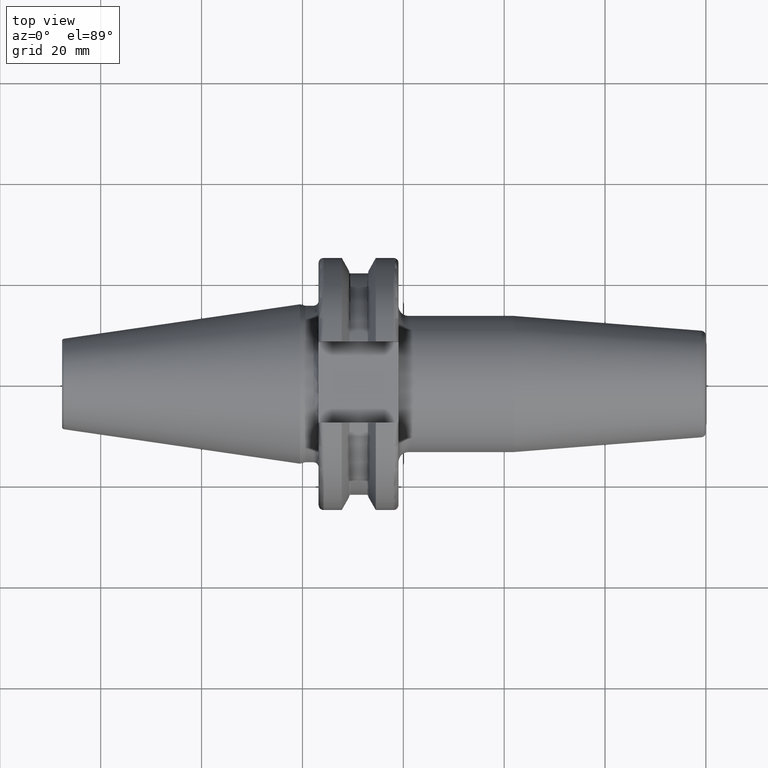
[diagram: clean part render]
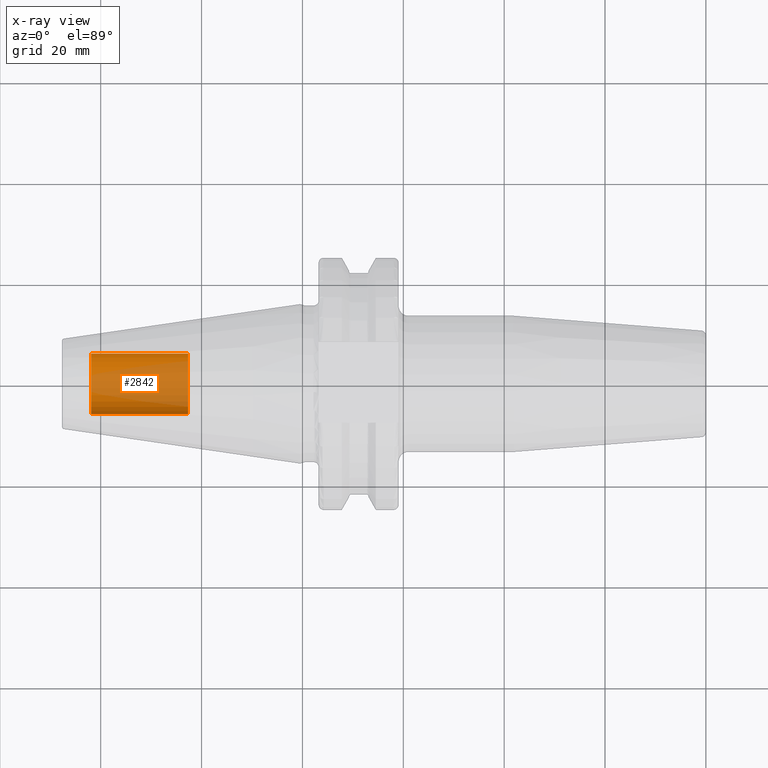
[diagram: x-ray — body ghosted, one internal face saturated and labeled with its STEP entity id]
A machine part, top view, then the same camera in x-ray: the body is ghosted and one INTERNAL B-rep face — a face not visible from any outside direction — is saturated and labeled: STEP entity #2842.
In plain terms, the highlighted cylindrical surface (edge-blend (fillet) strip) has radius 6.0027 mm, axis along (1, 0, 0).
Its self-contained STEP definition (entity closure, byte-faithful):
#2777=CARTESIAN_POINT('',(-4.19E1,0.E0,0.E0));
#2778=DIRECTION('',(-1.E0,0.E0,0.E0));
#2779=DIRECTION('',(0.E0,1.E0,0.E0));
#2780=AXIS2_PLACEMENT_3D('',#2777,#2778,#2779);
#2782=DIRECTION('',(1.E0,0.E0,0.E0));
#2783=VECTOR('',#2782,1.925E1);
#2784=CARTESIAN_POINT('',(-4.19E1,-6.00275E0,0.E0));
#2785=LINE('',#2784,#2783);
#2791=DIRECTION('',(1.E0,0.E0,0.E0));
#2792=VECTOR('',#2791,1.925E1);
#2793=CARTESIAN_POINT('',(-4.19E1,6.00275E0,0.E0));
#2794=LINE('',#2793,#2792);
#2800=CARTESIAN_POINT('',(-2.265E1,0.E0,0.E0));
#2801=DIRECTION('',(1.E0,0.E0,0.E0));
#2802=DIRECTION('',(0.E0,-1.E0,0.E0));
#2803=AXIS2_PLACEMENT_3D('',#2800,#2801,#2802);
#2815=CARTESIAN_POINT('',(-4.19E1,6.00275E0,0.E0));
#2816=CARTESIAN_POINT('',(-4.19E1,-6.00275E0,0.E0));
#2817=VERTEX_POINT('',#2815);
#2818=VERTEX_POINT('',#2816);
#2819=CARTESIAN_POINT('',(-2.265E1,6.00275E0,0.E0));
#2820=CARTESIAN_POINT('',(-2.265E1,-6.00275E0,0.E0));
#2821=VERTEX_POINT('',#2819);
#2822=VERTEX_POINT('',#2820);
#2827=CARTESIAN_POINT('',(-4.19E1,0.E0,0.E0));
#2828=DIRECTION('',(1.E0,0.E0,0.E0));
#2829=DIRECTION('',(0.E0,1.E0,0.E0));
#2830=AXIS2_PLACEMENT_3D('',#2827,#2828,#2829);
#2831=CYLINDRICAL_SURFACE('',#2830,6.00275E0);
#2833=ORIENTED_EDGE('',*,*,#2832,.T.);
#2835=ORIENTED_EDGE('',*,*,#2834,.T.);
#2837=ORIENTED_EDGE('',*,*,#2836,.T.);
#2839=ORIENTED_EDGE('',*,*,#2838,.F.);
#2840=EDGE_LOOP('',(#2833,#2835,#2837,#2839));
#2841=FACE_OUTER_BOUND('',#2840,.F.);
#2842=ADVANCED_FACE('',(#2841),#2831,.T.);
#2781=CIRCLE('',#2780,6.00275E0);
#2804=CIRCLE('',#2803,6.00275E0);
#2832=EDGE_CURVE('',#2817,#2818,#2781,.T.);
#2834=EDGE_CURVE('',#2818,#2822,#2785,.T.);
#2836=EDGE_CURVE('',#2822,#2821,#2804,.T.);
#2838=EDGE_CURVE('',#2817,#2821,#2794,.T.);